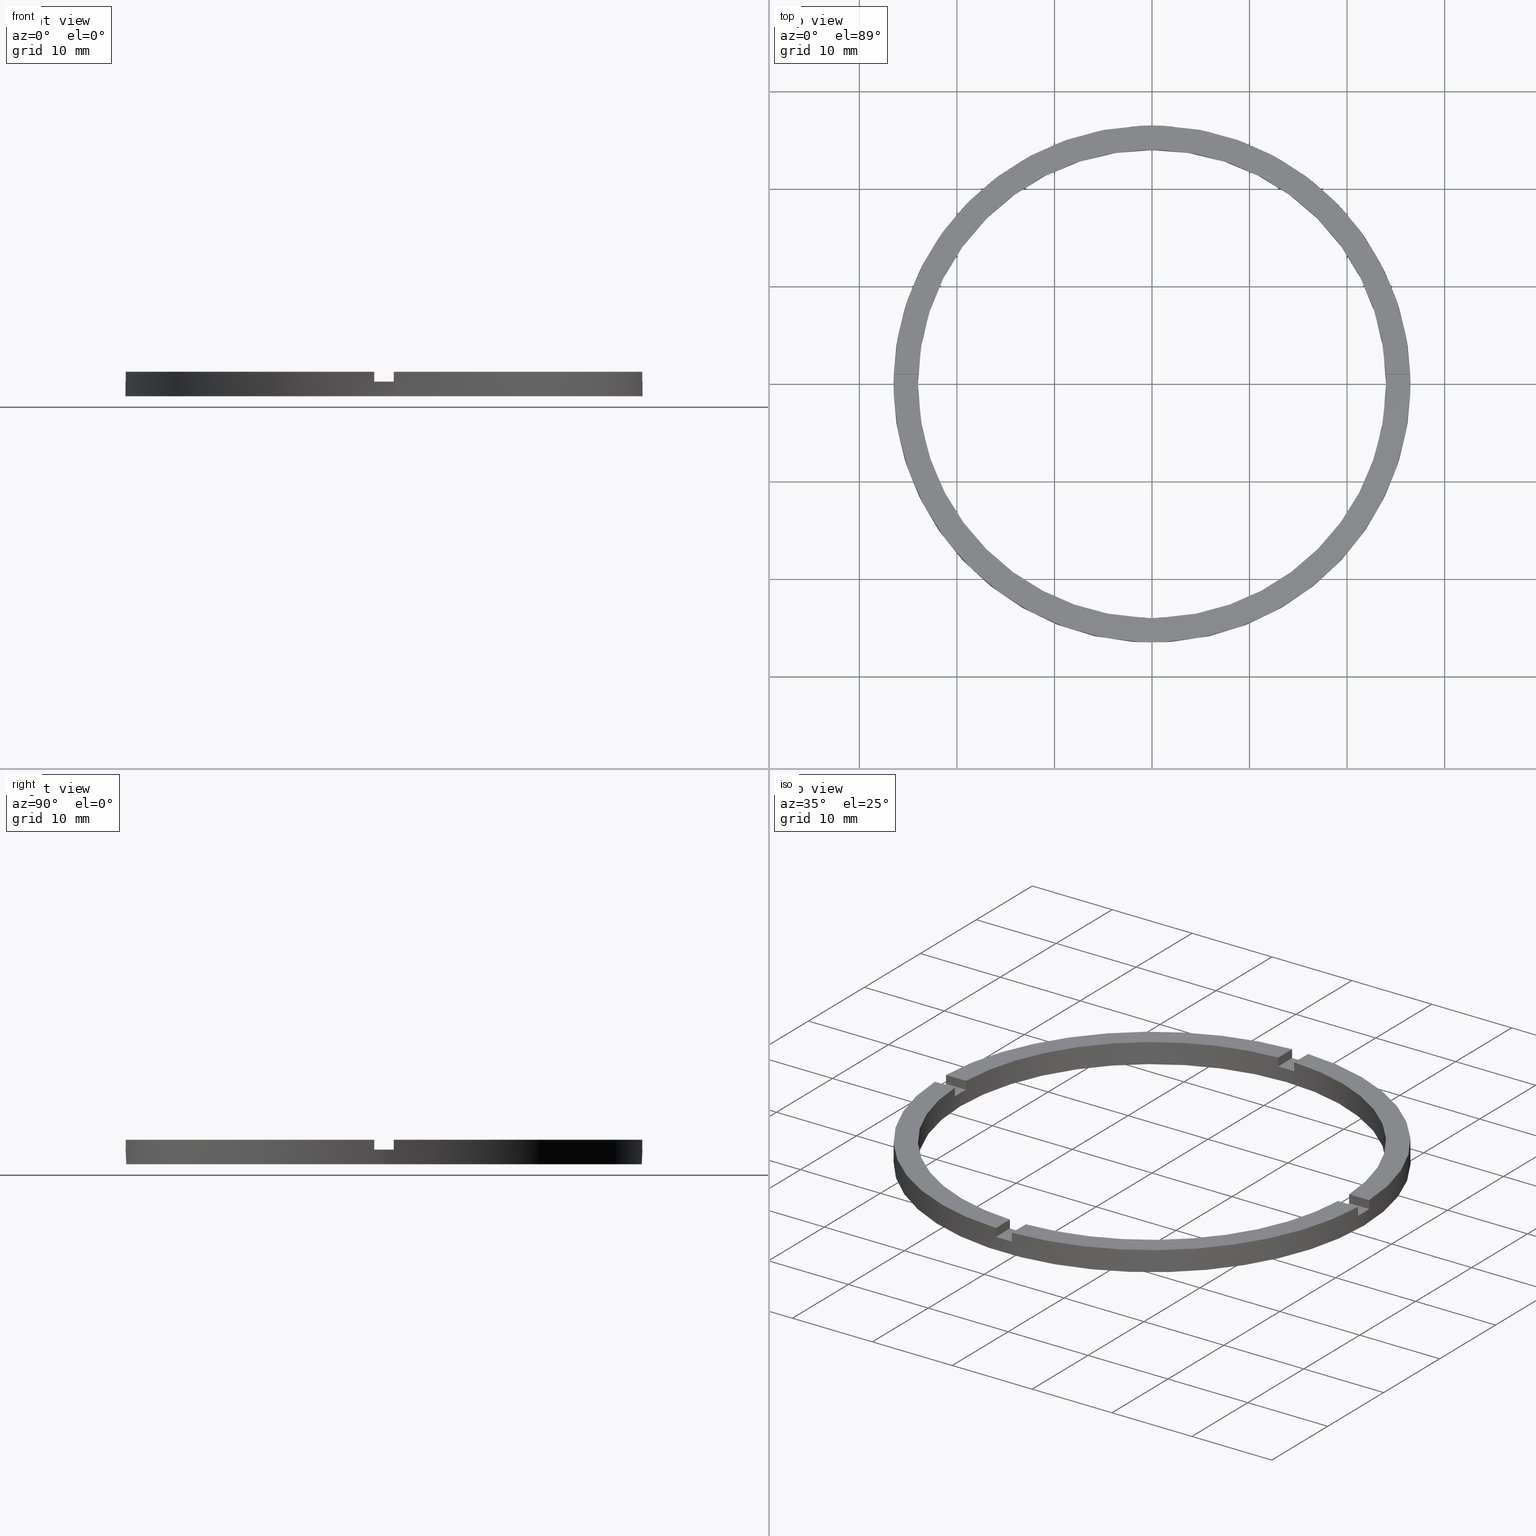
[diagram: canonical four-view strip — front | top / right | iso, engineering-drawing reading convention]
A machine part, canonical four-view strip (front | top / right | iso — engineering-drawing reading convention). The complete STEP part file that produces these views, byte-faithful:
ISO-10303-21;
HEADER;
FILE_DESCRIPTION (( 'STEP AP203' ),
    '1' );
FILE_NAME ('514111.step',
    '2024-12-26T02:38:33',
    ( 'MSI' ),
    ( '' ),
    'SwSTEP 2.0',
    'SolidWorks 2020',
    '' );
FILE_SCHEMA (( 'CONFIG_CONTROL_DESIGN' ));
ENDSEC;

DATA;
#1 = CC_DESIGN_PERSON_AND_ORGANIZATION_ASSIGNMENT ( #338, #728, ( #43 ) ) ;
#2 = EDGE_CURVE ( 'NONE', #87, #69, #513, .T. ) ;
#3 = AXIS2_PLACEMENT_3D ( 'NONE', #77, #549, #424 ) ;
#4 = CARTESIAN_POINT ( 'NONE',  ( 0.000000000000000000, 0.000000000000000000, 2.500000000000000000 ) ) ;
#5 = EDGE_CURVE ( 'NONE', #258, #254, #260, .T. ) ;
#6 = DIRECTION ( 'NONE',  ( -0.000000000000000000, -0.000000000000000000, -1.000000000000000000 ) ) ;
#7 = DIRECTION ( 'NONE',  ( -0.000000000000000000, -1.000000000000000000, -0.000000000000000000 ) ) ;
#8 = DIRECTION ( 'NONE',  ( -0.000000000000000000, -0.000000000000000000, -1.000000000000000000 ) ) ;
#9 = DIRECTION ( 'NONE',  ( 1.000000000000000000, 4.336808689942017120E-17, 0.000000000000000000 ) ) ;
#10 = EDGE_CURVE ( 'NONE', #644, #315, #759, .T. ) ;
#11 = CARTESIAN_POINT ( 'NONE',  ( -1.000000000000160316, -26.48112535373071807, 2.500000000000000000 ) ) ;
#12 = EDGE_CURVE ( 'NONE', #771, #374, #501, .T. ) ;
#13 = CARTESIAN_POINT ( 'NONE',  ( -24.00000000000000355, 0.000000000000000000, 1.500000000000000000 ) ) ;
#14 = CARTESIAN_POINT ( 'NONE',  ( -1.000000000000026201, 16.50000000000000000, 2.500000000000000000 ) ) ;
#15 = CARTESIAN_POINT ( 'NONE',  ( 0.000000000000000000, 0.000000000000000000, 2.500000000000000000 ) ) ;
#16 = LOCAL_TIME ( 10, 38, 33.00000000000000000, #538 ) ;
#17 = CALENDAR_DATE ( 2024, 26, 12 ) ;
#18 = CARTESIAN_POINT ( 'NONE',  ( 26.48112535373072873, 0.9999999999998427924, 1.500000000000000000 ) ) ;
#19 = CALENDAR_DATE ( 2024, 26, 12 ) ;
#20 = DIRECTION ( 'NONE',  ( -0.000000000000000000, -0.000000000000000000, -1.000000000000000000 ) ) ;
#21 = CARTESIAN_POINT ( 'NONE',  ( -23.97915761656360445, 0.9999999999999740208, 1.500000000000000000 ) ) ;
#22 = DIRECTION ( 'NONE',  ( 0.000000000000000000, -0.000000000000000000, 1.000000000000000000 ) ) ;
#23 = DATE_AND_TIME ( #19, #287 ) ;
#24 = AXIS2_PLACEMENT_3D ( 'NONE', #158, #213, #151 ) ;
#25 = CARTESIAN_POINT ( 'NONE',  ( 0.9999999999998397948, -26.48112535373072873, 2.500000000000000000 ) ) ;
#26 = CC_DESIGN_PERSON_AND_ORGANIZATION_ASSIGNMENT ( #50, #396, ( #149 ) ) ;
#27 = PERSON_AND_ORGANIZATION ( #531, #316 ) ;
#28 = CARTESIAN_POINT ( 'NONE',  ( 26.48112535373071807, -1.000000000000157208, 2.500000000000000000 ) ) ;
#29 = SHAPE_DEFINITION_REPRESENTATION ( #280, #138 ) ;
#30 = DIRECTION ( 'NONE',  ( 0.000000000000000000, -0.000000000000000000, 1.000000000000000000 ) ) ;
#31 = APPROVAL_DATE_TIME ( #294, #532 ) ;
#32 = AXIS2_PLACEMENT_3D ( 'NONE', #747, #741, #204 ) ;
#33 = EDGE_CURVE ( 'NONE', #766, #254, #251, .T. ) ;
#34 = DIRECTION ( 'NONE',  ( 1.000000000000000000, 0.000000000000000000, -0.000000000000000000 ) ) ;
#35 = EDGE_CURVE ( 'NONE', #588, #591, #499, .T. ) ;
#36 = ORIENTED_EDGE ( 'NONE', *, *, #174, .T. ) ;
#37 = ORIENTED_EDGE ( 'NONE', *, *, #427, .T. ) ;
#38 = PLANE ( 'NONE',  #690 ) ;
#39 = DIRECTION ( 'NONE',  ( -1.301042606982605074E-16, 1.000000000000000000, 0.000000000000000000 ) ) ;
#40 = CARTESIAN_POINT ( 'NONE',  ( 0.9999999999999737987, 16.50000000000000000, 2.500000000000000000 ) ) ;
#41 = CARTESIAN_POINT ( 'NONE',  ( -16.50000000000018474, 0.9999999999999753530, 1.500000000000000000 ) ) ;
#42 = AXIS2_PLACEMENT_3D ( 'NONE', #676, #742, #524 ) ;
#43 = PRODUCT ( '514111', '514111', '', ( #541 ) ) ;
#44 = CARTESIAN_POINT ( 'NONE',  ( 0.000000000000000000, 0.000000000000000000, 2.500000000000000000 ) ) ;
#45 = ORIENTED_EDGE ( 'NONE', *, *, #427, .F. ) ;
#46 = EDGE_LOOP ( 'NONE', ( #379, #345, #585, #122 ) ) ;
#47 = ORIENTED_EDGE ( 'NONE', *, *, #536, .T. ) ;
#48 = CARTESIAN_POINT ( 'NONE',  ( -26.48112535373072163, -1.000000000000026423, 2.500000000000000000 ) ) ;
#49 = ORIENTED_EDGE ( 'NONE', *, *, #751, .T. ) ;
#50 = PERSON_AND_ORGANIZATION ( #531, #316 ) ;
#51 = APPLICATION_PROTOCOL_DEFINITION ( 'international standard', 'config_control_design', 1994, #61 ) ;
#52 = CARTESIAN_POINT ( 'NONE',  ( 0.000000000000000000, 0.000000000000000000, 1.500000000000000000 ) ) ;
#53 = ORIENTED_EDGE ( 'NONE', *, *, #364, .T. ) ;
#54 = ORIENTED_EDGE ( 'NONE', *, *, #10, .F. ) ;
#56 = ORIENTED_EDGE ( 'NONE', *, *, #751, .F. ) ;
#55 = CARTESIAN_POINT ( 'NONE',  ( 26.48112535373071807, -1.000000000000157208, 2.500000000000000000 ) ) ;
#57 = EDGE_CURVE ( 'NONE', #250, #258, #764, .T. ) ;
#58 = APPROVAL_PERSON_ORGANIZATION ( #587, #781, #559 ) ;
#59 = EDGE_LOOP ( 'NONE', ( #252, #307, #101, #510, #114, #102 ) ) ;
#60 = LOCAL_TIME ( 10, 38, 33.00000000000000000, #584 ) ;
#61 = APPLICATION_CONTEXT ( 'configuration controlled 3d designs of mechanical parts and assemblies' ) ;
#62 = CARTESIAN_POINT ( 'NONE',  ( 0.000000000000000000, 0.000000000000000000, 0.000000000000000000 ) ) ;
#63 = ORIENTED_EDGE ( 'NONE', *, *, #72, .T. ) ;
#64 = CALENDAR_DATE ( 2024, 26, 12 ) ;
#65 = PRODUCT_RELATED_PRODUCT_CATEGORY ( 'detail', '', ( #43 ) ) ;
#66 = EDGE_LOOP ( 'NONE', ( #78, #619, #91, #312 ) ) ;
#67 = DATE_AND_TIME ( #64, #313 ) ;
#68 = EDGE_CURVE ( 'NONE', #83, #386, #193, .T. ) ;
#69 = VERTEX_POINT ( 'NONE', #544 ) ;
#70 = CARTESIAN_POINT ( 'NONE',  ( 0.000000000000000000, 0.000000000000000000, 1.500000000000000000 ) ) ;
#71 = LOCAL_TIME ( 10, 38, 33.00000000000000000, #589 ) ;
#72 = EDGE_CURVE ( 'NONE', #598, #116, #170, .T. ) ;
#73 = DIRECTION ( 'NONE',  ( 0.000000000000000000, 0.000000000000000000, 1.000000000000000000 ) ) ;
#74 = ORIENTED_EDGE ( 'NONE', *, *, #68, .T. ) ;
#75 = PLANE ( 'NONE',  #265 ) ;
#76 = CARTESIAN_POINT ( 'NONE',  ( 0.000000000000000000, 0.000000000000000000, 2.500000000000000000 ) ) ;
#77 = CARTESIAN_POINT ( 'NONE',  ( -16.50000000000018474, -1.000000000000024647, 1.500000000000000000 ) ) ;
#78 = ORIENTED_EDGE ( 'NONE', *, *, #420, .F. ) ;
#79 = ORIENTED_EDGE ( 'NONE', *, *, #627, .F. ) ;
#80 = VERTEX_POINT ( 'NONE', #11 ) ;
#81 = ORIENTED_EDGE ( 'NONE', *, *, #305, .T. ) ;
#82 = EDGE_CURVE ( 'NONE', #347, #337, #462, .T. ) ;
#83 = VERTEX_POINT ( 'NONE', #217 ) ;
#84 = ORIENTED_EDGE ( 'NONE', *, *, #82, .F. ) ;
#85 = DIRECTION ( 'NONE',  ( -0.000000000000000000, -0.000000000000000000, -1.000000000000000000 ) ) ;
#86 = EDGE_LOOP ( 'NONE', ( #606, #623, #572, #327 ) ) ;
#87 = VERTEX_POINT ( 'NONE', #25 ) ;
#88 =( NAMED_UNIT ( * ) PLANE_ANGLE_UNIT ( ) SI_UNIT ( $, .RADIAN. ) );
#89 = CARTESIAN_POINT ( 'NONE',  ( -1.000000000000160760, -23.97915761656359734, 1.500000000000000000 ) ) ;
#90 = CARTESIAN_POINT ( 'NONE',  ( 26.48112535373072873, 0.9999999999998427924, 2.500000000000000000 ) ) ;
#91 = ORIENTED_EDGE ( 'NONE', *, *, #404, .F. ) ;
#92 = ORIENTED_EDGE ( 'NONE', *, *, #463, .T. ) ;
#93 = ORIENTED_EDGE ( 'NONE', *, *, #718, .F. ) ;
#94 = EDGE_LOOP ( 'NONE', ( #92, #256, #636, #355, #348, #615, #63, #104, #571, #318, #604, #378 ) ) ;
#95 = DIRECTION ( 'NONE',  ( 0.000000000000000000, 0.000000000000000000, 1.000000000000000000 ) ) ;
#96 = EDGE_LOOP ( 'NONE', ( #637, #357, #120, #769 ) ) ;
#97 = ORIENTED_EDGE ( 'NONE', *, *, #535, .F. ) ;
#98 = ORIENTED_EDGE ( 'NONE', *, *, #268, .T. ) ;
#99 = ORIENTED_EDGE ( 'NONE', *, *, #306, .T. ) ;
#100 = PLANE ( 'NONE',  #278 ) ;
#101 = ORIENTED_EDGE ( 'NONE', *, *, #567, .T. ) ;
#102 = ORIENTED_EDGE ( 'NONE', *, *, #243, .T. ) ;
#103 = VERTEX_POINT ( 'NONE', #18 ) ;
#104 = ORIENTED_EDGE ( 'NONE', *, *, #382, .F. ) ;
#105 = AXIS2_PLACEMENT_3D ( 'NONE', #15, #304, #282 ) ;
#106 = ORIENTED_EDGE ( 'NONE', *, *, #372, .T. ) ;
#107 = ORIENTED_EDGE ( 'NONE', *, *, #5, .F. ) ;
#108 = ORIENTED_EDGE ( 'NONE', *, *, #35, .T. ) ;
#109 = ORIENTED_EDGE ( 'NONE', *, *, #537, .F. ) ;
#110 = CARTESIAN_POINT ( 'NONE',  ( -24.00000000000000355, 0.000000000000000000, 2.500000000000000000 ) ) ;
#111 = ORIENTED_EDGE ( 'NONE', *, *, #150, .T. ) ;
#112 = ORIENTED_EDGE ( 'NONE', *, *, #757, .F. ) ;
#113 = CARTESIAN_POINT ( 'NONE',  ( -26.50000000000000355, 0.000000000000000000, 1.500000000000000000 ) ) ;
#114 = ORIENTED_EDGE ( 'NONE', *, *, #152, .F. ) ;
#115 = ORIENTED_EDGE ( 'NONE', *, *, #718, .T. ) ;
#116 = VERTEX_POINT ( 'NONE', #522 ) ;
#117 = EDGE_LOOP ( 'NONE', ( #368, #350, #109, #341 ) ) ;
#118 = CARTESIAN_POINT ( 'NONE',  ( -16.50000000000018474, -1.000000000000024647, 1.500000000000000000 ) ) ;
#119 = ORIENTED_EDGE ( 'NONE', *, *, #173, .F. ) ;
#120 = ORIENTED_EDGE ( 'NONE', *, *, #292, .F. ) ;
#121 = ADVANCED_FACE ( 'NONE', ( #176 ), #725, .T. ) ;
#122 = ORIENTED_EDGE ( 'NONE', *, *, #476, .F. ) ;
#123 = ORIENTED_EDGE ( 'NONE', *, *, #57, .T. ) ;
#124 = DIRECTION ( 'NONE',  ( 0.000000000000000000, -0.000000000000000000, 1.000000000000000000 ) ) ;
#125 = ORIENTED_EDGE ( 'NONE', *, *, #567, .F. ) ;
#126 = ORIENTED_EDGE ( 'NONE', *, *, #686, .T. ) ;
#127 = CARTESIAN_POINT ( 'NONE',  ( -1.000000000000026201, 16.50000000000000000, 1.500000000000000000 ) ) ;
#128 = VERTEX_POINT ( 'NONE', #638 ) ;
#129 = VERTEX_POINT ( 'NONE', #506 ) ;
#130 = EDGE_CURVE ( 'NONE', #87, #375, #455, .T. ) ;
#131 = ORIENTED_EDGE ( 'NONE', *, *, #82, .T. ) ;
#132 = ORIENTED_EDGE ( 'NONE', *, *, #521, .F. ) ;
#133 = DIRECTION ( 'NONE',  ( -1.000000000000000000, -1.734723475976806848E-16, 0.000000000000000000 ) ) ;
#134 = DIRECTION ( 'NONE',  ( 1.000000000000000000, 0.000000000000000000, 0.000000000000000000 ) ) ;
#135 = CARTESIAN_POINT ( 'NONE',  ( 0.9999999999998393507, -23.97915761656361155, 2.500000000000000000 ) ) ;
#136 = APPLICATION_CONTEXT ( 'configuration controlled 3d designs of mechanical parts and assemblies' ) ;
#137 = CARTESIAN_POINT ( 'NONE',  ( -1.000000000000161648, -16.50000000000018119, 2.500000000000000000 ) ) ;
#138 = ADVANCED_BREP_SHAPE_REPRESENTATION ( '514111', ( #595, #700 ), #209 ) ;
#139 = DIRECTION ( 'NONE',  ( 1.000000000000000000, 0.000000000000000000, 0.000000000000000000 ) ) ;
#140 = AXIS2_PLACEMENT_3D ( 'NONE', #210, #443, #519 ) ;
#141 = AXIS2_PLACEMENT_3D ( 'NONE', #569, #699, #344 ) ;
#142 = CARTESIAN_POINT ( 'NONE',  ( 0.000000000000000000, 0.000000000000000000, 0.000000000000000000 ) ) ;
#143 = APPLICATION_PROTOCOL_DEFINITION ( 'international standard', 'config_control_design', 1994, #136 ) ;
#144 = DIRECTION ( 'NONE',  ( 0.000000000000000000, 0.000000000000000000, 1.000000000000000000 ) ) ;
#145 = DIRECTION ( 'NONE',  ( 0.000000000000000000, -0.000000000000000000, 1.000000000000000000 ) ) ;
#146 = DIRECTION ( 'NONE',  ( 0.000000000000000000, 0.000000000000000000, 1.000000000000000000 ) ) ;
#147 = CARTESIAN_POINT ( 'NONE',  ( 16.49999999999999289, 0.9999999999998423483, 1.500000000000000000 ) ) ;
#148 = CARTESIAN_POINT ( 'NONE',  ( 0.000000000000000000, 0.000000000000000000, 1.500000000000000000 ) ) ;
#149 = PRODUCT_DEFINITION ( 'δ֪', '', #286, #557 ) ;
#150 = EDGE_CURVE ( 'NONE', #342, #103, #441, .T. ) ;
#151 = DIRECTION ( 'NONE',  ( 1.000000000000000000, 0.000000000000000000, 0.000000000000000000 ) ) ;
#152 = EDGE_CURVE ( 'NONE', #250, #358, #200, .T. ) ;
#153 = CARTESIAN_POINT ( 'NONE',  ( -26.50000000000000355, 0.000000000000000000, 2.500000000000000000 ) ) ;
#154 = CARTESIAN_POINT ( 'NONE',  ( -16.50000000000018474, 0.9999999999999753530, 2.500000000000000000 ) ) ;
#155 = DIRECTION ( 'NONE',  ( -0.000000000000000000, -0.000000000000000000, -1.000000000000000000 ) ) ;
#156 = EDGE_CURVE ( 'NONE', #370, #591, #457, .T. ) ;
#157 = CARTESIAN_POINT ( 'NONE',  ( 23.97915761656359734, -1.000000000000157208, 1.500000000000000000 ) ) ;
#158 = CARTESIAN_POINT ( 'NONE',  ( 0.000000000000000000, 0.000000000000000000, 2.500000000000000000 ) ) ;
#159 = CARTESIAN_POINT ( 'NONE',  ( 0.9999999999999737987, 16.50000000000000000, 1.500000000000000000 ) ) ;
#160 = CARTESIAN_POINT ( 'NONE',  ( 16.49999999999999289, 0.9999999999998423483, 1.500000000000000000 ) ) ;
#161 = ADVANCED_FACE ( 'NONE', ( #698 ), #317, .F. ) ;
#162 = CARTESIAN_POINT ( 'NONE',  ( -1.000000000000161648, -16.50000000000018119, 1.500000000000000000 ) ) ;
#163 = CARTESIAN_POINT ( 'NONE',  ( -26.48112535373072163, -1.000000000000026423, 2.500000000000000000 ) ) ;
#164 = CARTESIAN_POINT ( 'NONE',  ( 0.9999999999999737987, 26.48112535373072518, 2.500000000000000000 ) ) ;
#165 = ADVANCED_FACE ( 'NONE', ( #203, #430 ), #628, .F. ) ;
#166 = CARTESIAN_POINT ( 'NONE',  ( 26.48112535373072873, 0.9999999999998427924, 2.500000000000000000 ) ) ;
#167 = ADVANCED_FACE ( 'NONE', ( #717 ), #775, .F. ) ;
#168 = PLANE ( 'NONE',  #581 ) ;
#169 = EDGE_CURVE ( 'NONE', #605, #342, #458, .T. ) ;
#170 = CIRCLE ( 'NONE', #679, 24.00000000000000355 ) ;
#171 = APPROVAL ( #320, 'δָ��' ) ;
#172 = VECTOR ( 'NONE', #95, 1000.000000000000000 ) ;
#173 = EDGE_CURVE ( 'NONE', #771, #373, #704, .T. ) ;
#174 = EDGE_CURVE ( 'NONE', #337, #347, #187, .T. ) ;
#175 = VECTOR ( 'NONE', #73, 1000.000000000000000 ) ;
#176 = FACE_OUTER_BOUND ( 'NONE', #593, .T. ) ;
#177 = CARTESIAN_POINT ( 'NONE',  ( 16.49999999999999645, -1.000000000000157652, 1.500000000000000000 ) ) ;
#178 = VECTOR ( 'NONE', #146, 1000.000000000000000 ) ;
#179 = DIRECTION ( 'NONE',  ( -0.000000000000000000, -0.000000000000000000, -1.000000000000000000 ) ) ;
#180 = FACE_OUTER_BOUND ( 'NONE', #592, .T. ) ;
#181 = VECTOR ( 'NONE', #452, 1000.000000000000000 ) ;
#182 = LINE ( 'NONE', #137, #185 ) ;
#183 = DIRECTION ( 'NONE',  ( -4.336808689942017120E-17, 1.000000000000000000, 0.000000000000000000 ) ) ;
#184 = CARTESIAN_POINT ( 'NONE',  ( 0.000000000000000000, 0.000000000000000000, 1.500000000000000000 ) ) ;
#185 = VECTOR ( 'NONE', #748, 1000.000000000000000 ) ;
#186 = LINE ( 'NONE', #28, #449 ) ;
#187 = CIRCLE ( 'NONE', #141, 26.50000000000000355 ) ;
#188 = LINE ( 'NONE', #561, #453 ) ;
#189 = DIRECTION ( 'NONE',  ( -1.000000000000000000, 0.000000000000000000, 0.000000000000000000 ) ) ;
#190 = LINE ( 'NONE', #205, #192 ) ;
#191 = AXIS2_PLACEMENT_3D ( 'NONE', #322, #403, #450 ) ;
#192 = VECTOR ( 'NONE', #262, 1000.000000000000000 ) ;
#193 = LINE ( 'NONE', #135, #437 ) ;
#194 = DIRECTION ( 'NONE',  ( -1.000000000000000000, 0.000000000000000000, 0.000000000000000000 ) ) ;
#195 = FACE_OUTER_BOUND ( 'NONE', #96, .T. ) ;
#196 = CARTESIAN_POINT ( 'NONE',  ( 23.97915761656359734, -1.000000000000157208, 2.500000000000000000 ) ) ;
#197 = CARTESIAN_POINT ( 'NONE',  ( 0.000000000000000000, 0.000000000000000000, 2.500000000000000000 ) ) ;
#198 = DIRECTION ( 'NONE',  ( 1.000000000000000000, 0.000000000000000000, -0.000000000000000000 ) ) ;
#199 = CIRCLE ( 'NONE', #668, 24.00000000000000355 ) ;
#200 = CIRCLE ( 'NONE', #444, 24.00000000000000355 ) ;
#201 = LINE ( 'NONE', #264, #178 ) ;
#202 = CARTESIAN_POINT ( 'NONE',  ( 0.000000000000000000, 0.000000000000000000, 1.500000000000000000 ) ) ;
#203 = FACE_OUTER_BOUND ( 'NONE', #383, .T. ) ;
#204 = DIRECTION ( 'NONE',  ( 1.000000000000000000, 0.000000000000000000, -0.000000000000000000 ) ) ;
#205 = CARTESIAN_POINT ( 'NONE',  ( 23.97915761656361155, 0.9999999999998427924, 2.500000000000000000 ) ) ;
#206 = DIRECTION ( 'NONE',  ( -0.000000000000000000, -0.000000000000000000, -1.000000000000000000 ) ) ;
#207 = LINE ( 'NONE', #41, #715 ) ;
#208 = FACE_OUTER_BOUND ( 'NONE', #86, .T. ) ;
#209 =( GEOMETRIC_REPRESENTATION_CONTEXT ( 3 ) GLOBAL_UNCERTAINTY_ASSIGNED_CONTEXT ( ( #232 ) ) GLOBAL_UNIT_ASSIGNED_CONTEXT ( ( #482, #88, #270 ) ) REPRESENTATION_CONTEXT ( 'NONE', 'WORKASPACE' ) );
#210 = CARTESIAN_POINT ( 'NONE',  ( 0.000000000000000000, 0.000000000000000000, 1.500000000000000000 ) ) ;
#211 = VECTOR ( 'NONE', #259, 1000.000000000000000 ) ;
#212 = DIRECTION ( 'NONE',  ( 0.000000000000000000, 0.000000000000000000, 1.000000000000000000 ) ) ;
#213 = DIRECTION ( 'NONE',  ( 0.000000000000000000, 0.000000000000000000, 1.000000000000000000 ) ) ;
#214 = CIRCLE ( 'NONE', #733, 26.50000000000000355 ) ;
#215 = DATE_TIME_ROLE ( 'classification_date' ) ;
#216 = DIRECTION ( 'NONE',  ( 1.000000000000000000, 0.000000000000000000, 0.000000000000000000 ) ) ;
#217 = CARTESIAN_POINT ( 'NONE',  ( 0.9999999999998393507, -23.97915761656361155, 2.500000000000000000 ) ) ;
#218 = FACE_OUTER_BOUND ( 'NONE', #340, .T. ) ;
#219 = CIRCLE ( 'NONE', #596, 24.00000000000000355 ) ;
#220 = VECTOR ( 'NONE', #303, 1000.000000000000000 ) ;
#221 = ADVANCED_FACE ( 'NONE', ( #195 ), #168, .T. ) ;
#222 = PLANE ( 'NONE',  #545 ) ;
#223 = LINE ( 'NONE', #177, #737 ) ;
#224 = DIRECTION ( 'NONE',  ( 1.000000000000000000, 0.000000000000000000, 0.000000000000000000 ) ) ;
#225 = AXIS2_PLACEMENT_3D ( 'NONE', #4, #509, #302 ) ;
#226 = CARTESIAN_POINT ( 'NONE',  ( 0.000000000000000000, 0.000000000000000000, 1.500000000000000000 ) ) ;
#227 = LINE ( 'NONE', #431, #211 ) ;
#228 = EDGE_CURVE ( 'NONE', #69, #386, #719, .T. ) ;
#229 = ORIENTED_EDGE ( 'NONE', *, *, #535, .T. ) ;
#230 = FACE_OUTER_BOUND ( 'NONE', #570, .T. ) ;
#231 = CIRCLE ( 'NONE', #191, 26.50000000000000355 ) ;
#232 = UNCERTAINTY_MEASURE_WITH_UNIT (LENGTH_MEASURE( 1.000000000000000082E-05 ), #482, 'distance_accuracy_value', 'NONE');
#233 = ADVANCED_FACE ( 'NONE', ( #180 ), #365, .F. ) ;
#234 = VECTOR ( 'NONE', #6, 1000.000000000000000 ) ;
#235 = EDGE_CURVE ( 'NONE', #369, #373, #695, .T. ) ;
#236 = VECTOR ( 'NONE', #520, 1000.000000000000000 ) ;
#237 = FACE_OUTER_BOUND ( 'NONE', #46, .T. ) ;
#238 = DIRECTION ( 'NONE',  ( 4.336808689942017120E-17, -1.000000000000000000, 0.000000000000000000 ) ) ;
#239 = LINE ( 'NONE', #568, #245 ) ;
#240 = CARTESIAN_POINT ( 'NONE',  ( 0.000000000000000000, 0.000000000000000000, 0.000000000000000000 ) ) ;
#241 = CIRCLE ( 'NONE', #662, 24.00000000000000355 ) ;
#242 = CARTESIAN_POINT ( 'NONE',  ( 0.000000000000000000, 0.000000000000000000, 1.500000000000000000 ) ) ;
#243 = EDGE_CURVE ( 'NONE', #250, #644, #207, .T. ) ;
#244 = FACE_OUTER_BOUND ( 'NONE', #514, .T. ) ;
#245 = VECTOR ( 'NONE', #410, 1000.000000000000000 ) ;
#246 = LINE ( 'NONE', #640, #220 ) ;
#247 = VECTOR ( 'NONE', #206, 1000.000000000000000 ) ;
#248 = AXIS2_PLACEMENT_3D ( 'NONE', #159, #310, #528 ) ;
#249 = DIRECTION ( 'NONE',  ( -1.301042606982605074E-16, 1.000000000000000000, -0.000000000000000000 ) ) ;
#250 = VERTEX_POINT ( 'NONE', #21 ) ;
#251 = CIRCLE ( 'NONE', #293, 26.50000000000000355 ) ;
#252 = ORIENTED_EDGE ( 'NONE', *, *, #10, .T. ) ;
#253 = VERTEX_POINT ( 'NONE', #89 ) ;
#254 = VERTEX_POINT ( 'NONE', #642 ) ;
#255 = ORIENTED_EDGE ( 'NONE', *, *, #515, .F. ) ;
#256 = ORIENTED_EDGE ( 'NONE', *, *, #156, .T. ) ;
#257 = ORIENTED_EDGE ( 'NONE', *, *, #404, .T. ) ;
#258 = VERTEX_POINT ( 'NONE', #397 ) ;
#259 = DIRECTION ( 'NONE',  ( -0.000000000000000000, -0.000000000000000000, -1.000000000000000000 ) ) ;
#260 = LINE ( 'NONE', #154, #762 ) ;
#261 = PLANE ( 'NONE',  #417 ) ;
#262 = DIRECTION ( 'NONE',  ( -0.000000000000000000, -0.000000000000000000, -1.000000000000000000 ) ) ;
#263 = DIRECTION ( 'NONE',  ( 0.000000000000000000, 0.000000000000000000, 1.000000000000000000 ) ) ;
#264 = CARTESIAN_POINT ( 'NONE',  ( -1.000000000000160316, -26.48112535373071807, 2.500000000000000000 ) ) ;
#265 = AXIS2_PLACEMENT_3D ( 'NONE', #147, #183, #485 ) ;
#266 = DIRECTION ( 'NONE',  ( 0.000000000000000000, 0.000000000000000000, 1.000000000000000000 ) ) ;
#267 = CARTESIAN_POINT ( 'NONE',  ( -1.000000000000026201, 23.97915761656360445, 2.500000000000000000 ) ) ;
#268 = EDGE_CURVE ( 'NONE', #369, #128, #190, .T. ) ;
#269 = CARTESIAN_POINT ( 'NONE',  ( 24.00000000000000355, 2.939152317953648289E-15, 2.500000000000000000 ) ) ;
#270 =( NAMED_UNIT ( * ) SI_UNIT ( $, .STERADIAN. ) SOLID_ANGLE_UNIT ( ) );
#271 = DIRECTION ( 'NONE',  ( -0.000000000000000000, 0.000000000000000000, 1.000000000000000000 ) ) ;
#272 = DIRECTION ( 'NONE',  ( 0.000000000000000000, 0.000000000000000000, 1.000000000000000000 ) ) ;
#273 = DIRECTION ( 'NONE',  ( 1.000000000000000000, 0.000000000000000000, 0.000000000000000000 ) ) ;
#274 = DATE_TIME_ROLE ( 'creation_date' ) ;
#275 = ORIENTED_EDGE ( 'NONE', *, *, #498, .T. ) ;
#276 = AXIS2_PLACEMENT_3D ( 'NONE', #240, #290, #666 ) ;
#277 = CARTESIAN_POINT ( 'NONE',  ( -1.000000000000026201, 26.48112535373072163, 1.500000000000000000 ) ) ;
#278 = AXIS2_PLACEMENT_3D ( 'NONE', #425, #331, #34 ) ;
#279 = CALENDAR_DATE ( 2024, 26, 12 ) ;
#280 = PRODUCT_DEFINITION_SHAPE ( 'NONE', 'NONE',  #149 ) ;
#281 = AXIS2_PLACEMENT_3D ( 'NONE', #414, #474, #710 ) ;
#282 = DIRECTION ( 'NONE',  ( 1.000000000000000000, 0.000000000000000000, -0.000000000000000000 ) ) ;
#283 = DIRECTION ( 'NONE',  ( 0.000000000000000000, 0.000000000000000000, 1.000000000000000000 ) ) ;
#284 = PERSON_AND_ORGANIZATION ( #531, #316 ) ;
#285 = APPROVAL_PERSON_ORGANIZATION ( #550, #171, #684 ) ;
#286 = PRODUCT_DEFINITION_FORMATION_WITH_SPECIFIED_SOURCE ( '�κ�', '', #43, .NOT_KNOWN. ) ;
#287 = LOCAL_TIME ( 10, 38, 33.00000000000000000, #546 ) ;
#288 = DATE_AND_TIME ( #279, #16 ) ;
#289 = CARTESIAN_POINT ( 'NONE',  ( 16.49999999999999645, -1.000000000000157652, 1.500000000000000000 ) ) ;
#290 = DIRECTION ( 'NONE',  ( 0.000000000000000000, 0.000000000000000000, 1.000000000000000000 ) ) ;
#291 = EDGE_CURVE ( 'NONE', #116, #80, #182, .T. ) ;
#292 = EDGE_CURVE ( 'NONE', #253, #386, #199, .T. ) ;
#293 = AXIS2_PLACEMENT_3D ( 'NONE', #422, #399, #649 ) ;
#294 = DATE_AND_TIME ( #17, #60 ) ;
#295 = ADVANCED_FACE ( 'NONE', ( #724 ), #432, .T. ) ;
#296 = DIRECTION ( 'NONE',  ( 1.000000000000000000, 4.336808689942017120E-17, 0.000000000000000000 ) ) ;
#297 = DIRECTION ( 'NONE',  ( 0.000000000000000000, 0.000000000000000000, 1.000000000000000000 ) ) ;
#298 = AXIS2_PLACEMENT_3D ( 'NONE', #390, #552, #436 ) ;
#299 = DIRECTION ( 'NONE',  ( 1.000000000000000000, 0.000000000000000000, 0.000000000000000000 ) ) ;
#300 = CARTESIAN_POINT ( 'NONE',  ( 0.000000000000000000, 0.000000000000000000, 1.500000000000000000 ) ) ;
#301 = CARTESIAN_POINT ( 'NONE',  ( -1.000000000000026201, 23.97915761656360445, 1.500000000000000000 ) ) ;
#302 = DIRECTION ( 'NONE',  ( 1.000000000000000000, 0.000000000000000000, 0.000000000000000000 ) ) ;
#303 = DIRECTION ( 'NONE',  ( -0.000000000000000000, -1.000000000000000000, -0.000000000000000000 ) ) ;
#304 = DIRECTION ( 'NONE',  ( 0.000000000000000000, 0.000000000000000000, 1.000000000000000000 ) ) ;
#305 = EDGE_CURVE ( 'NONE', #103, #128, #460, .T. ) ;
#306 = EDGE_CURVE ( 'NONE', #370, #128, #720, .T. ) ;
#307 = ORIENTED_EDGE ( 'NONE', *, *, #323, .T. ) ;
#308 = ORIENTED_EDGE ( 'NONE', *, *, #612, .F. ) ;
#309 = ORIENTED_EDGE ( 'NONE', *, *, #542, .F. ) ;
#310 = DIRECTION ( 'NONE',  ( 1.000000000000000000, -0.000000000000000000, 0.000000000000000000 ) ) ;
#311 = DIRECTION ( 'NONE',  ( 0.000000000000000000, 0.000000000000000000, 1.000000000000000000 ) ) ;
#312 = ORIENTED_EDGE ( 'NONE', *, *, #130, .T. ) ;
#313 = LOCAL_TIME ( 10, 38, 33.00000000000000000, #329 ) ;
#314 = CARTESIAN_POINT ( 'NONE',  ( 0.000000000000000000, 0.000000000000000000, 2.500000000000000000 ) ) ;
#315 = VERTEX_POINT ( 'NONE', #113 ) ;
#316 = ORGANIZATION ( 'δָ��', 'δָ��', '' ) ;
#317 = PLANE ( 'NONE',  #298 ) ;
#318 = ORIENTED_EDGE ( 'NONE', *, *, #68, .F. ) ;
#319 = PERSON_AND_ORGANIZATION ( #531, #316 ) ;
#320 = APPROVAL_STATUS ( 'not_yet_approved' ) ;
#321 = VERTEX_POINT ( 'NONE', #163 ) ;
#322 = CARTESIAN_POINT ( 'NONE',  ( 0.000000000000000000, 0.000000000000000000, 1.500000000000000000 ) ) ;
#323 = EDGE_CURVE ( 'NONE', #315, #629, #442, .T. ) ;
#324 = ORIENTED_EDGE ( 'NONE', *, *, #677, .F. ) ;
#325 = DIRECTION ( 'NONE',  ( 1.000000000000000000, 0.000000000000000000, -0.000000000000000000 ) ) ;
#326 = APPROVAL_PERSON_ORGANIZATION ( #319, #532, #516 ) ;
#327 = ORIENTED_EDGE ( 'NONE', *, *, #612, .T. ) ;
#328 = VERTEX_POINT ( 'NONE', #335 ) ;
#329 = COORDINATED_UNIVERSAL_TIME_OFFSET ( 8, 0, .AHEAD. ) ;
#330 = ORIENTED_EDGE ( 'NONE', *, *, #243, .F. ) ;
#331 = DIRECTION ( 'NONE',  ( 0.000000000000000000, 0.000000000000000000, 1.000000000000000000 ) ) ;
#332 = APPROVAL_DATE_TIME ( #67, #781 ) ;
#333 = AXIS2_PLACEMENT_3D ( 'NONE', #314, #155, #400 ) ;
#334 = EDGE_LOOP ( 'NONE', ( #108, #360 ) ) ;
#335 = CARTESIAN_POINT ( 'NONE',  ( -1.000000000000160316, -26.48112535373071807, 1.500000000000000000 ) ) ;
#336 = ORIENTED_EDGE ( 'NONE', *, *, #515, .T. ) ;
#337 = VERTEX_POINT ( 'NONE', #408 ) ;
#338 = PERSON_AND_ORGANIZATION ( #531, #316 ) ;
#339 = ORIENTED_EDGE ( 'NONE', *, *, #2, .T. ) ;
#340 = EDGE_LOOP ( 'NONE', ( #330, #123, #349, #45 ) ) ;
#341 = ORIENTED_EDGE ( 'NONE', *, *, #542, .T. ) ;
#342 = VERTEX_POINT ( 'NONE', #548 ) ;
#343 = DIRECTION ( 'NONE',  ( 1.000000000000000000, 0.000000000000000000, 0.000000000000000000 ) ) ;
#344 = DIRECTION ( 'NONE',  ( 1.000000000000000000, 0.000000000000000000, 0.000000000000000000 ) ) ;
#345 = ORIENTED_EDGE ( 'NONE', *, *, #173, .T. ) ;
#346 = VERTEX_POINT ( 'NONE', #631 ) ;
#347 = VERTEX_POINT ( 'NONE', #740 ) ;
#348 = ORIENTED_EDGE ( 'NONE', *, *, #678, .T. ) ;
#349 = ORIENTED_EDGE ( 'NONE', *, *, #5, .T. ) ;
#350 = ORIENTED_EDGE ( 'NONE', *, *, #72, .F. ) ;
#351 = ORIENTED_EDGE ( 'NONE', *, *, #306, .F. ) ;
#352 = ORIENTED_EDGE ( 'NONE', *, *, #323, .F. ) ;
#353 = AXIS2_PLACEMENT_3D ( 'NONE', #672, #20, #735 ) ;
#354 = ORIENTED_EDGE ( 'NONE', *, *, #709, .T. ) ;
#355 = ORIENTED_EDGE ( 'NONE', *, *, #536, .F. ) ;
#356 = ORIENTED_EDGE ( 'NONE', *, *, #709, .F. ) ;
#357 = ORIENTED_EDGE ( 'NONE', *, *, #228, .T. ) ;
#358 = VERTEX_POINT ( 'NONE', #13 ) ;
#359 = ORIENTED_EDGE ( 'NONE', *, *, #537, .T. ) ;
#360 = ORIENTED_EDGE ( 'NONE', *, *, #406, .T. ) ;
#361 = ORIENTED_EDGE ( 'NONE', *, *, #677, .T. ) ;
#362 = ORIENTED_EDGE ( 'NONE', *, *, #235, .T. ) ;
#363 = ORIENTED_EDGE ( 'NONE', *, *, #12, .F. ) ;
#364 = EDGE_CURVE ( 'NONE', #502, #346, #721, .T. ) ;
#365 = PLANE ( 'NONE',  #652 ) ;
#366 = ORIENTED_EDGE ( 'NONE', *, *, #463, .F. ) ;
#367 = ORIENTED_EDGE ( 'NONE', *, *, #169, .F. ) ;
#368 = ORIENTED_EDGE ( 'NONE', *, *, #291, .F. ) ;
#369 = VERTEX_POINT ( 'NONE', #429 ) ;
#370 = VERTEX_POINT ( 'NONE', #508 ) ;
#371 = ORIENTED_EDGE ( 'NONE', *, *, #33, .F. ) ;
#372 = EDGE_CURVE ( 'NONE', #328, #80, #201, .T. ) ;
#373 = VERTEX_POINT ( 'NONE', #391 ) ;
#374 = VERTEX_POINT ( 'NONE', #301 ) ;
#375 = VERTEX_POINT ( 'NONE', #55 ) ;
#376 = ORIENTED_EDGE ( 'NONE', *, *, #464, .T. ) ;
#377 = ORIENTED_EDGE ( 'NONE', *, *, #33, .T. ) ;
#378 = ORIENTED_EDGE ( 'NONE', *, *, #364, .F. ) ;
#379 = ORIENTED_EDGE ( 'NONE', *, *, #498, .F. ) ;
#380 = ORIENTED_EDGE ( 'NONE', *, *, #57, .F. ) ;
#381 = DIRECTION ( 'NONE',  ( 1.000000000000000000, 0.000000000000000000, 0.000000000000000000 ) ) ;
#382 = EDGE_CURVE ( 'NONE', #253, #116, #451, .T. ) ;
#383 = EDGE_LOOP ( 'NONE', ( #84, #602 ) ) ;
#384 = DIRECTION ( 'NONE',  ( 0.000000000000000000, 0.000000000000000000, 1.000000000000000000 ) ) ;
#385 = DIRECTION ( 'NONE',  ( -1.000000000000000000, -1.734723475976806848E-16, 0.000000000000000000 ) ) ;
#386 = VERTEX_POINT ( 'NONE', #423 ) ;
#387 = AXIS2_PLACEMENT_3D ( 'NONE', #226, #283, #659 ) ;
#388 = APPROVAL_STATUS ( 'not_yet_approved' ) ;
#389 = DIRECTION ( 'NONE',  ( 0.000000000000000000, -0.000000000000000000, 1.000000000000000000 ) ) ;
#390 = CARTESIAN_POINT ( 'NONE',  ( -1.000000000000161648, -16.50000000000018119, 1.500000000000000000 ) ) ;
#391 = CARTESIAN_POINT ( 'NONE',  ( 0.9999999999999737987, 23.97915761656360445, 2.500000000000000000 ) ) ;
#392 = CARTESIAN_POINT ( 'NONE',  ( 0.000000000000000000, 0.000000000000000000, 1.500000000000000000 ) ) ;
#393 = CARTESIAN_POINT ( 'NONE',  ( -16.50000000000018474, -1.000000000000024647, 2.500000000000000000 ) ) ;
#394 = DIRECTION ( 'NONE',  ( 1.000000000000000000, 0.000000000000000000, 0.000000000000000000 ) ) ;
#395 = CC_DESIGN_DATE_AND_TIME_ASSIGNMENT ( #23, #215, ( #489 ) ) ;
#396 = PERSON_AND_ORGANIZATION_ROLE ( 'creator' ) ;
#397 = CARTESIAN_POINT ( 'NONE',  ( -23.97915761656360445, 0.9999999999999740208, 2.500000000000000000 ) ) ;
#398 = DIRECTION ( 'NONE',  ( 0.000000000000000000, -0.000000000000000000, 1.000000000000000000 ) ) ;
#399 = DIRECTION ( 'NONE',  ( 0.000000000000000000, 0.000000000000000000, 1.000000000000000000 ) ) ;
#400 = DIRECTION ( 'NONE',  ( -1.000000000000000000, 0.000000000000000000, 0.000000000000000000 ) ) ;
#401 = DIRECTION ( 'NONE',  ( -1.000000000000000000, -4.336808689942017120E-17, -0.000000000000000000 ) ) ;
#402 = PERSON_AND_ORGANIZATION_ROLE ( 'creator' ) ;
#403 = DIRECTION ( 'NONE',  ( -0.000000000000000000, 0.000000000000000000, 1.000000000000000000 ) ) ;
#404 = EDGE_CURVE ( 'NONE', #87, #83, #701, .T. ) ;
#405 = CC_DESIGN_PERSON_AND_ORGANIZATION_ASSIGNMENT ( #547, #402, ( #286 ) ) ;
#406 = EDGE_CURVE ( 'NONE', #591, #588, #696, .T. ) ;
#407 = DIRECTION ( 'NONE',  ( 1.301042606982605074E-16, -1.000000000000000000, 0.000000000000000000 ) ) ;
#408 = CARTESIAN_POINT ( 'NONE',  ( 26.50000000000000355, 3.245314017740486554E-15, 0.000000000000000000 ) ) ;
#409 = AXIS2_PLACEMENT_3D ( 'NONE', #635, #723, #518 ) ;
#410 = DIRECTION ( 'NONE',  ( -0.000000000000000000, -0.000000000000000000, -1.000000000000000000 ) ) ;
#411 = CARTESIAN_POINT ( 'NONE',  ( 0.9999999999998384625, -16.50000000000018119, 1.500000000000000000 ) ) ;
#412 = CARTESIAN_POINT ( 'NONE',  ( -26.48112535373072163, -1.000000000000026423, 1.500000000000000000 ) ) ;
#413 = DIRECTION ( 'NONE',  ( 1.000000000000000000, 0.000000000000000000, 0.000000000000000000 ) ) ;
#414 = CARTESIAN_POINT ( 'NONE',  ( 0.000000000000000000, 0.000000000000000000, 2.500000000000000000 ) ) ;
#415 = AXIS2_PLACEMENT_3D ( 'NONE', #142, #297, #381 ) ;
#416 = DIRECTION ( 'NONE',  ( -1.000000000000000000, 0.000000000000000000, 0.000000000000000000 ) ) ;
#417 = AXIS2_PLACEMENT_3D ( 'NONE', #392, #492, #500 ) ;
#418 = DIRECTION ( 'NONE',  ( 1.000000000000000000, 0.000000000000000000, 0.000000000000000000 ) ) ;
#419 = CARTESIAN_POINT ( 'NONE',  ( 16.49999999999999645, -1.000000000000157652, 2.500000000000000000 ) ) ;
#420 = EDGE_CURVE ( 'NONE', #346, #375, #426, .T. ) ;
#421 = DIRECTION ( 'NONE',  ( -0.000000000000000000, -0.000000000000000000, -1.000000000000000000 ) ) ;
#422 = CARTESIAN_POINT ( 'NONE',  ( 0.000000000000000000, 0.000000000000000000, 2.500000000000000000 ) ) ;
#423 = CARTESIAN_POINT ( 'NONE',  ( 0.9999999999998393507, -23.97915761656361155, 1.500000000000000000 ) ) ;
#424 = DIRECTION ( 'NONE',  ( 1.000000000000000000, 1.734723475976806848E-16, 0.000000000000000000 ) ) ;
#425 = CARTESIAN_POINT ( 'NONE',  ( 0.000000000000000000, 0.000000000000000000, 2.500000000000000000 ) ) ;
#426 = LINE ( 'NONE', #419, #693 ) ;
#427 = EDGE_CURVE ( 'NONE', #644, #254, #438, .T. ) ;
#428 = CARTESIAN_POINT ( 'NONE',  ( 0.000000000000000000, 0.000000000000000000, 2.500000000000000000 ) ) ;
#429 = CARTESIAN_POINT ( 'NONE',  ( 23.97915761656361155, 0.9999999999998427924, 2.500000000000000000 ) ) ;
#430 = FACE_BOUND ( 'NONE', #334, .T. ) ;
#431 = CARTESIAN_POINT ( 'NONE',  ( 26.50000000000000355, 3.245314017740486554E-15, 2.500000000000000000 ) ) ;
#432 = PLANE ( 'NONE',  #446 ) ;
#433 = CARTESIAN_POINT ( 'NONE',  ( -24.00000000000000355, 0.000000000000000000, 0.000000000000000000 ) ) ;
#434 = VECTOR ( 'NONE', #249, 1000.000000000000000 ) ;
#435 = VECTOR ( 'NONE', #626, 1000.000000000000000 ) ;
#436 = DIRECTION ( 'NONE',  ( 1.301042606982605074E-16, -1.000000000000000000, 0.000000000000000000 ) ) ;
#437 = VECTOR ( 'NONE', #179, 1000.000000000000000 ) ;
#438 = LINE ( 'NONE', #454, #172 ) ;
#439 = CARTESIAN_POINT ( 'NONE',  ( -1.000000000000026201, 26.48112535373072163, 2.500000000000000000 ) ) ;
#440 = DIRECTION ( 'NONE',  ( 0.000000000000000000, 0.000000000000000000, 1.000000000000000000 ) ) ;
#441 = CIRCLE ( 'NONE', #670, 26.50000000000000355 ) ;
#442 = CIRCLE ( 'NONE', #387, 26.50000000000000355 ) ;
#443 = DIRECTION ( 'NONE',  ( 0.000000000000000000, -0.000000000000000000, 1.000000000000000000 ) ) ;
#444 = AXIS2_PLACEMENT_3D ( 'NONE', #70, #266, #394 ) ;
#445 = CARTESIAN_POINT ( 'NONE',  ( 0.9999999999999737987, 16.50000000000000000, 1.500000000000000000 ) ) ;
#446 = AXIS2_PLACEMENT_3D ( 'NONE', #511, #691, #325 ) ;
#447 = CYLINDRICAL_SURFACE ( 'NONE', #333, 26.50000000000000355 ) ;
#448 = AXIS2_PLACEMENT_3D ( 'NONE', #530, #124, #413 ) ;
#449 = VECTOR ( 'NONE', #212, 1000.000000000000000 ) ;
#450 = DIRECTION ( 'NONE',  ( 1.000000000000000000, 0.000000000000000000, 0.000000000000000000 ) ) ;
#451 = LINE ( 'NONE', #543, #466 ) ;
#452 = DIRECTION ( 'NONE',  ( -1.000000000000000000, -4.336808689942017120E-17, -0.000000000000000000 ) ) ;
#453 = VECTOR ( 'NONE', #272, 1000.000000000000000 ) ;
#454 = CARTESIAN_POINT ( 'NONE',  ( -26.48112535373072518, 0.9999999999999735767, 2.500000000000000000 ) ) ;
#455 = CIRCLE ( 'NONE', #24, 26.50000000000000355 ) ;
#456 = DIRECTION ( 'NONE',  ( 1.000000000000000000, 1.734723475976806848E-16, -0.000000000000000000 ) ) ;
#457 = LINE ( 'NONE', #269, #703 ) ;
#458 = CIRCLE ( 'NONE', #448, 26.50000000000000355 ) ;
#459 = ADVANCED_FACE ( 'NONE', ( #706 ), #447, .T. ) ;
#460 = LINE ( 'NONE', #160, #181 ) ;
#461 = CC_DESIGN_APPROVAL ( #171, ( #489 ) ) ;
#462 = CIRCLE ( 'NONE', #487, 26.50000000000000355 ) ;
#463 = EDGE_CURVE ( 'NONE', #502, #370, #708, .T. ) ;
#464 = EDGE_CURVE ( 'NONE', #605, #375, #186, .T. ) ;
#465 = VECTOR ( 'NONE', #533, 1000.000000000000000 ) ;
#466 = VECTOR ( 'NONE', #263, 1000.000000000000000 ) ;
#467 = CIRCLE ( 'NONE', #779, 26.50000000000000355 ) ;
#468 = EDGE_CURVE ( 'NONE', #656, #369, #711, .T. ) ;
#469 = FACE_OUTER_BOUND ( 'NONE', #767, .T. ) ;
#470 = DIRECTION ( 'NONE',  ( -1.734723475976806848E-16, 1.000000000000000000, 0.000000000000000000 ) ) ;
#471 = CARTESIAN_POINT ( 'NONE',  ( 0.9999999999999737987, 23.97915761656360445, 2.500000000000000000 ) ) ;
#472 = VECTOR ( 'NONE', #563, 1000.000000000000000 ) ;
#473 = VECTOR ( 'NONE', #565, 1000.000000000000000 ) ;
#474 = DIRECTION ( 'NONE',  ( 0.000000000000000000, 0.000000000000000000, 1.000000000000000000 ) ) ;
#475 = VECTOR ( 'NONE', #608, 1000.000000000000000 ) ;
#476 = EDGE_CURVE ( 'NONE', #129, #553, #188, .T. ) ;
#477 = FACE_OUTER_BOUND ( 'NONE', #66, .T. ) ;
#478 = AXIS2_PLACEMENT_3D ( 'NONE', #52, #311, #139 ) ;
#479 = FACE_OUTER_BOUND ( 'NONE', #94, .T. ) ;
#480 = VECTOR ( 'NONE', #658, 1000.000000000000000 ) ;
#481 = LINE ( 'NONE', #153, #734 ) ;
#482 =( LENGTH_UNIT ( ) NAMED_UNIT ( * ) SI_UNIT ( .MILLI., .METRE. ) );
#483 = LINE ( 'NONE', #393, #727 ) ;
#484 = LINE ( 'NONE', #118, #473 ) ;
#485 = DIRECTION ( 'NONE',  ( -1.000000000000000000, -4.336808689942017120E-17, 0.000000000000000000 ) ) ;
#486 = CIRCLE ( 'NONE', #526, 26.50000000000000355 ) ;
#487 = AXIS2_PLACEMENT_3D ( 'NONE', #62, #144, #224 ) ;
#488 = LINE ( 'NONE', #40, #475 ) ;
#489 = SECURITY_CLASSIFICATION ( '', '', #657 ) ;
#490 = LINE ( 'NONE', #14, #495 ) ;
#491 = VECTOR ( 'NONE', #407, 1000.000000000000000 ) ;
#492 = DIRECTION ( 'NONE',  ( 0.000000000000000000, -0.000000000000000000, 1.000000000000000000 ) ) ;
#493 = FACE_OUTER_BOUND ( 'NONE', #641, .T. ) ;
#494 = CARTESIAN_POINT ( 'NONE',  ( -23.97915761656360445, 0.9999999999999740208, 2.500000000000000000 ) ) ;
#495 = VECTOR ( 'NONE', #7, 1000.000000000000000 ) ;
#496 = ORIENTED_EDGE ( 'NONE', *, *, #663, .T. ) ;
#497 = CARTESIAN_POINT ( 'NONE',  ( 0.9999999999998384625, -16.50000000000018119, 2.500000000000000000 ) ) ;
#498 = EDGE_CURVE ( 'NONE', #771, #129, #713, .T. ) ;
#499 = CIRCLE ( 'NONE', #409, 24.00000000000000355 ) ;
#500 = DIRECTION ( 'NONE',  ( 1.000000000000000000, 0.000000000000000000, -0.000000000000000000 ) ) ;
#501 = CIRCLE ( 'NONE', #765, 24.00000000000000355 ) ;
#502 = VERTEX_POINT ( 'NONE', #157 ) ;
#503 = CC_DESIGN_APPROVAL ( #781, ( #149 ) ) ;
#504 = ORIENTED_EDGE ( 'NONE', *, *, #468, .T. ) ;
#505 = EDGE_CURVE ( 'NONE', #373, #553, #488, .T. ) ;
#506 = CARTESIAN_POINT ( 'NONE',  ( 0.9999999999999737987, 26.48112535373072518, 1.500000000000000000 ) ) ;
#507 = ORIENTED_EDGE ( 'NONE', *, *, #539, .F. ) ;
#508 = CARTESIAN_POINT ( 'NONE',  ( 24.00000000000000355, 2.939152317953648289E-15, 1.500000000000000000 ) ) ;
#509 = DIRECTION ( 'NONE',  ( 0.000000000000000000, 0.000000000000000000, 1.000000000000000000 ) ) ;
#510 = ORIENTED_EDGE ( 'NONE', *, *, #678, .F. ) ;
#511 = CARTESIAN_POINT ( 'NONE',  ( 0.000000000000000000, 0.000000000000000000, 1.500000000000000000 ) ) ;
#512 = CARTESIAN_POINT ( 'NONE',  ( 24.00000000000000355, 2.939152317953648289E-15, 0.000000000000000000 ) ) ;
#513 = LINE ( 'NONE', #750, #773 ) ;
#514 = EDGE_LOOP ( 'NONE', ( #504, #98, #590, #97 ) ) ;
#515 = EDGE_CURVE ( 'NONE', #321, #629, #746, .T. ) ;
#516 = APPROVAL_ROLE ( '' ) ;
#517 = DIRECTION ( 'NONE',  ( 1.000000000000000000, 0.000000000000000000, 0.000000000000000000 ) ) ;
#518 = DIRECTION ( 'NONE',  ( 1.000000000000000000, 0.000000000000000000, 0.000000000000000000 ) ) ;
#519 = DIRECTION ( 'NONE',  ( 1.000000000000000000, 0.000000000000000000, 0.000000000000000000 ) ) ;
#520 = DIRECTION ( 'NONE',  ( 0.000000000000000000, 1.000000000000000000, 0.000000000000000000 ) ) ;
#521 = EDGE_CURVE ( 'NONE', #574, #374, #744, .T. ) ;
#522 = CARTESIAN_POINT ( 'NONE',  ( -1.000000000000160760, -23.97915761656359734, 2.500000000000000000 ) ) ;
#523 = ADVANCED_FACE ( 'NONE', ( #230 ), #692, .T. ) ;
#524 = DIRECTION ( 'NONE',  ( 1.000000000000000000, 0.000000000000000000, -0.000000000000000000 ) ) ;
#525 = CARTESIAN_POINT ( 'NONE',  ( 0.000000000000000000, 0.000000000000000000, 1.500000000000000000 ) ) ;
#526 = AXIS2_PLACEMENT_3D ( 'NONE', #749, #22, #517 ) ;
#527 = ADVANCED_FACE ( 'NONE', ( #726 ), #100, .T. ) ;
#528 = DIRECTION ( 'NONE',  ( 0.000000000000000000, 0.000000000000000000, -1.000000000000000000 ) ) ;
#529 = DIRECTION ( 'NONE',  ( -1.000000000000000000, -1.734723475976806848E-16, 0.000000000000000000 ) ) ;
#530 = CARTESIAN_POINT ( 'NONE',  ( 0.000000000000000000, 0.000000000000000000, 1.500000000000000000 ) ) ;
#531 = PERSON ( 'δָ��', 'δָ��', 'δָ��', ('δָ��'), ('δָ��'), ('δָ��') ) ;
#532 = APPROVAL ( #688, 'δָ��' ) ;
#533 = DIRECTION ( 'NONE',  ( 0.000000000000000000, 0.000000000000000000, 1.000000000000000000 ) ) ;
#534 = CARTESIAN_POINT ( 'NONE',  ( 0.9999999999998384625, -16.50000000000018119, 1.500000000000000000 ) ) ;
#535 = EDGE_CURVE ( 'NONE', #656, #103, #729, .T. ) ;
#536 = EDGE_CURVE ( 'NONE', #358, #588, #755, .T. ) ;
#537 = EDGE_CURVE ( 'NONE', #321, #598, #483, .T. ) ;
#538 = COORDINATED_UNIVERSAL_TIME_OFFSET ( 8, 0, .AHEAD. ) ;
#539 = EDGE_CURVE ( 'NONE', #253, #328, #743, .T. ) ;
#540 = APPROVAL_DATE_TIME ( #288, #171 ) ;
#541 = MECHANICAL_CONTEXT ( 'NONE', #61, 'mechanical' ) ;
#542 = EDGE_CURVE ( 'NONE', #321, #80, #214, .T. ) ;
#543 = CARTESIAN_POINT ( 'NONE',  ( -1.000000000000160760, -23.97915761656359734, 2.500000000000000000 ) ) ;
#544 = CARTESIAN_POINT ( 'NONE',  ( 0.9999999999998397948, -26.48112535373072873, 1.500000000000000000 ) ) ;
#545 = AXIS2_PLACEMENT_3D ( 'NONE', #148, #398, #198 ) ;
#546 = COORDINATED_UNIVERSAL_TIME_OFFSET ( 8, 0, .AHEAD. ) ;
#547 = PERSON_AND_ORGANIZATION ( #531, #316 ) ;
#548 = CARTESIAN_POINT ( 'NONE',  ( 26.50000000000000355, 3.245314017740486554E-15, 1.500000000000000000 ) ) ;
#549 = DIRECTION ( 'NONE',  ( 1.734723475976806848E-16, -1.000000000000000000, 0.000000000000000000 ) ) ;
#550 = PERSON_AND_ORGANIZATION ( #531, #316 ) ;
#551 = DIRECTION ( 'NONE',  ( 1.000000000000000000, 0.000000000000000000, 0.000000000000000000 ) ) ;
#552 = DIRECTION ( 'NONE',  ( -1.000000000000000000, -1.301042606982605074E-16, 0.000000000000000000 ) ) ;
#553 = VERTEX_POINT ( 'NONE', #164 ) ;
#554 = CARTESIAN_POINT ( 'NONE',  ( 0.9999999999999737987, 23.97915761656360445, 1.500000000000000000 ) ) ;
#555 = CARTESIAN_POINT ( 'NONE',  ( -23.97915761656360445, -1.000000000000025979, 2.500000000000000000 ) ) ;
#556 = CC_DESIGN_SECURITY_CLASSIFICATION ( #489, ( #286 ) ) ;
#557 = DESIGN_CONTEXT ( 'detailed design', #136, 'design' ) ;
#558 = ADVANCED_FACE ( 'NONE', ( #752 ), #222, .T. ) ;
#559 = APPROVAL_ROLE ( '' ) ;
#560 = CARTESIAN_POINT ( 'NONE',  ( 26.48112535373071807, -1.000000000000157208, 1.500000000000000000 ) ) ;
#561 = CARTESIAN_POINT ( 'NONE',  ( 0.9999999999999737987, 26.48112535373072518, 2.500000000000000000 ) ) ;
#562 = PERSON_AND_ORGANIZATION_ROLE ( 'design_supplier' ) ;
#563 = DIRECTION ( 'NONE',  ( -0.000000000000000000, -0.000000000000000000, -1.000000000000000000 ) ) ;
#564 = AXIS2_PLACEMENT_3D ( 'NONE', #780, #470, #529 ) ;
#565 = DIRECTION ( 'NONE',  ( 1.000000000000000000, 1.734723475976806848E-16, -0.000000000000000000 ) ) ;
#566 = ADVANCED_FACE ( 'NONE', ( #237 ), #768, .F. ) ;
#567 = EDGE_CURVE ( 'NONE', #629, #611, #484, .T. ) ;
#568 = CARTESIAN_POINT ( 'NONE',  ( -23.97915761656360445, -1.000000000000025979, 2.500000000000000000 ) ) ;
#569 = CARTESIAN_POINT ( 'NONE',  ( 0.000000000000000000, 0.000000000000000000, 0.000000000000000000 ) ) ;
#570 = EDGE_LOOP ( 'NONE', ( #630, #377, #107, #56 ) ) ;
#571 = ORIENTED_EDGE ( 'NONE', *, *, #292, .T. ) ;
#572 = ORIENTED_EDGE ( 'NONE', *, *, #468, .F. ) ;
#573 = EDGE_LOOP ( 'NONE', ( #507, #639, #616, #576 ) ) ;
#574 = VERTEX_POINT ( 'NONE', #267 ) ;
#575 = DATE_AND_TIME ( #577, #71 ) ;
#576 = ORIENTED_EDGE ( 'NONE', *, *, #372, .F. ) ;
#577 = CALENDAR_DATE ( 2024, 26, 12 ) ;
#578 = AXIS2_PLACEMENT_3D ( 'NONE', #525, #30, #763 ) ;
#579 = DIRECTION ( 'NONE',  ( 0.000000000000000000, 0.000000000000000000, 1.000000000000000000 ) ) ;
#580 = EDGE_LOOP ( 'NONE', ( #257, #74, #770, #776 ) ) ;
#581 = AXIS2_PLACEMENT_3D ( 'NONE', #242, #667, #782 ) ;
#582 = ORIENTED_EDGE ( 'NONE', *, *, #464, .F. ) ;
#583 = ADVANCED_FACE ( 'NONE', ( #208 ), #634, .T. ) ;
#584 = COORDINATED_UNIVERSAL_TIME_OFFSET ( 8, 0, .AHEAD. ) ;
#585 = ORIENTED_EDGE ( 'NONE', *, *, #505, .T. ) ;
#586 = CLOSED_SHELL ( 'NONE', ( #778, #459, #523, #583, #772, #527, #165, #121, #694, #664, #660, #295, #167, #161, #221, #683, #653, #558, #233, #566, #702 ) ) ;
#587 = PERSON_AND_ORGANIZATION ( #531, #316 ) ;
#588 = VERTEX_POINT ( 'NONE', #433 ) ;
#589 = COORDINATED_UNIVERSAL_TIME_OFFSET ( 8, 0, .AHEAD. ) ;
#590 = ORIENTED_EDGE ( 'NONE', *, *, #305, .F. ) ;
#591 = VERTEX_POINT ( 'NONE', #512 ) ;
#592 = EDGE_LOOP ( 'NONE', ( #126, #654, #324, #633 ) ) ;
#593 = EDGE_LOOP ( 'NONE', ( #93, #367, #376, #601, #339, #79, #106, #309, #336, #352, #647, #131 ) ) ;
#594 = ORIENTED_EDGE ( 'NONE', *, *, #268, .F. ) ;
#595 = MANIFOLD_SOLID_BREP ( '�г�-����1', #586 ) ;
#596 = AXIS2_PLACEMENT_3D ( 'NONE', #44, #632, #299 ) ;
#597 = CARTESIAN_POINT ( 'NONE',  ( 0.000000000000000000, 0.000000000000000000, 0.000000000000000000 ) ) ;
#598 = VERTEX_POINT ( 'NONE', #555 ) ;
#599 = EDGE_LOOP ( 'NONE', ( #359, #496, #125, #255 ) ) ;
#600 = EDGE_CURVE ( 'NONE', #766, #617, #732, .T. ) ;
#601 = ORIENTED_EDGE ( 'NONE', *, *, #130, .F. ) ;
#602 = ORIENTED_EDGE ( 'NONE', *, *, #174, .F. ) ;
#603 = EDGE_CURVE ( 'NONE', #129, #617, #486, .T. ) ;
#604 = ORIENTED_EDGE ( 'NONE', *, *, #761, .T. ) ;
#605 = VERTEX_POINT ( 'NONE', #560 ) ;
#606 = ORIENTED_EDGE ( 'NONE', *, *, #505, .F. ) ;
#607 = ORIENTED_EDGE ( 'NONE', *, *, #420, .T. ) ;
#608 = DIRECTION ( 'NONE',  ( 0.000000000000000000, 1.000000000000000000, 0.000000000000000000 ) ) ;
#609 = CARTESIAN_POINT ( 'NONE',  ( 0.000000000000000000, 0.000000000000000000, 1.500000000000000000 ) ) ;
#610 = ORIENTED_EDGE ( 'NONE', *, *, #476, .T. ) ;
#611 = VERTEX_POINT ( 'NONE', #648 ) ;
#612 = EDGE_CURVE ( 'NONE', #656, #553, #467, .T. ) ;
#613 = ORIENTED_EDGE ( 'NONE', *, *, #152, .T. ) ;
#614 = ORIENTED_EDGE ( 'NONE', *, *, #169, .T. ) ;
#615 = ORIENTED_EDGE ( 'NONE', *, *, #663, .F. ) ;
#616 = ORIENTED_EDGE ( 'NONE', *, *, #291, .T. ) ;
#617 = VERTEX_POINT ( 'NONE', #277 ) ;
#618 = ORIENTED_EDGE ( 'NONE', *, *, #600, .T. ) ;
#619 = ORIENTED_EDGE ( 'NONE', *, *, #761, .F. ) ;
#620 = ORIENTED_EDGE ( 'NONE', *, *, #603, .F. ) ;
#621 = CARTESIAN_POINT ( 'NONE',  ( 0.000000000000000000, 0.000000000000000000, 2.500000000000000000 ) ) ;
#622 = EDGE_LOOP ( 'NONE', ( #356, #53, #607, #582 ) ) ;
#623 = ORIENTED_EDGE ( 'NONE', *, *, #235, .F. ) ;
#624 = ORIENTED_EDGE ( 'NONE', *, *, #406, .F. ) ;
#625 = ORIENTED_EDGE ( 'NONE', *, *, #603, .T. ) ;
#626 = DIRECTION ( 'NONE',  ( -1.301042606982605074E-16, 1.000000000000000000, -0.000000000000000000 ) ) ;
#627 = EDGE_CURVE ( 'NONE', #328, #69, #231, .T. ) ;
#628 = PLANE ( 'NONE',  #276 ) ;
#629 = VERTEX_POINT ( 'NONE', #412 ) ;
#630 = ORIENTED_EDGE ( 'NONE', *, *, #686, .F. ) ;
#631 = CARTESIAN_POINT ( 'NONE',  ( 23.97915761656359734, -1.000000000000157208, 2.500000000000000000 ) ) ;
#632 = DIRECTION ( 'NONE',  ( 0.000000000000000000, 0.000000000000000000, 1.000000000000000000 ) ) ;
#633 = ORIENTED_EDGE ( 'NONE', *, *, #600, .F. ) ;
#634 = PLANE ( 'NONE',  #42 ) ;
#635 = CARTESIAN_POINT ( 'NONE',  ( 0.000000000000000000, 0.000000000000000000, 0.000000000000000000 ) ) ;
#636 = ORIENTED_EDGE ( 'NONE', *, *, #35, .F. ) ;
#637 = ORIENTED_EDGE ( 'NONE', *, *, #627, .T. ) ;
#638 = CARTESIAN_POINT ( 'NONE',  ( 23.97915761656361155, 0.9999999999998427924, 1.500000000000000000 ) ) ;
#639 = ORIENTED_EDGE ( 'NONE', *, *, #382, .T. ) ;
#640 = CARTESIAN_POINT ( 'NONE',  ( -1.000000000000026201, 16.50000000000000000, 1.500000000000000000 ) ) ;
#641 = EDGE_LOOP ( 'NONE', ( #650, #99, #594, #362, #119, #643, #132, #49, #380, #613, #47, #624 ) ) ;
#642 = CARTESIAN_POINT ( 'NONE',  ( -26.48112535373072518, 0.9999999999999735767, 2.500000000000000000 ) ) ;
#643 = ORIENTED_EDGE ( 'NONE', *, *, #12, .T. ) ;
#644 = VERTEX_POINT ( 'NONE', #697 ) ;
#645 = EDGE_LOOP ( 'NONE', ( #783, #115, #36, #112, #54, #37, #371, #618, #620, #610, #308, #229 ) ) ;
#646 = PERSON_AND_ORGANIZATION_ROLE ( 'classification_officer' ) ;
#647 = ORIENTED_EDGE ( 'NONE', *, *, #757, .T. ) ;
#648 = CARTESIAN_POINT ( 'NONE',  ( -23.97915761656360445, -1.000000000000025979, 1.500000000000000000 ) ) ;
#649 = DIRECTION ( 'NONE',  ( 1.000000000000000000, 0.000000000000000000, 0.000000000000000000 ) ) ;
#650 = ORIENTED_EDGE ( 'NONE', *, *, #156, .F. ) ;
#651 = CC_DESIGN_DATE_AND_TIME_ASSIGNMENT ( #575, #274, ( #149 ) ) ;
#652 = AXIS2_PLACEMENT_3D ( 'NONE', #127, #416, #579 ) ;
#653 = ADVANCED_FACE ( 'NONE', ( #753 ), #38, .F. ) ;
#654 = ORIENTED_EDGE ( 'NONE', *, *, #521, .T. ) ;
#655 = DIRECTION ( 'NONE',  ( -0.000000000000000000, -0.000000000000000000, -1.000000000000000000 ) ) ;
#656 = VERTEX_POINT ( 'NONE', #166 ) ;
#657 = SECURITY_CLASSIFICATION_LEVEL ( 'unclassified' ) ;
#658 = DIRECTION ( 'NONE',  ( -0.000000000000000000, -0.000000000000000000, -1.000000000000000000 ) ) ;
#659 = DIRECTION ( 'NONE',  ( 1.000000000000000000, 0.000000000000000000, 0.000000000000000000 ) ) ;
#660 = ADVANCED_FACE ( 'NONE', ( #218 ), #705, .F. ) ;
#661 = CARTESIAN_POINT ( 'NONE',  ( -1.000000000000026201, 23.97915761656360445, 2.500000000000000000 ) ) ;
#662 = AXIS2_PLACEMENT_3D ( 'NONE', #609, #384, #134 ) ;
#663 = EDGE_CURVE ( 'NONE', #598, #611, #239, .T. ) ;
#664 = ADVANCED_FACE ( 'NONE', ( #739 ), #774, .F. ) ;
#665 = DIRECTION ( 'NONE',  ( 1.000000000000000000, 4.336808689942017120E-17, 0.000000000000000000 ) ) ;
#666 = DIRECTION ( 'NONE',  ( 1.000000000000000000, 0.000000000000000000, -0.000000000000000000 ) ) ;
#667 = DIRECTION ( 'NONE',  ( -0.000000000000000000, 0.000000000000000000, 1.000000000000000000 ) ) ;
#668 = AXIS2_PLACEMENT_3D ( 'NONE', #184, #271, #681 ) ;
#669 = DIRECTION ( 'NONE',  ( 0.000000000000000000, 0.000000000000000000, 1.000000000000000000 ) ) ;
#670 = AXIS2_PLACEMENT_3D ( 'NONE', #202, #145, #273 ) ;
#671 = CC_DESIGN_PERSON_AND_ORGANIZATION_ASSIGNMENT ( #284, #646, ( #489 ) ) ;
#672 = CARTESIAN_POINT ( 'NONE',  ( 0.000000000000000000, 0.000000000000000000, 2.500000000000000000 ) ) ;
#673 = PLANE ( 'NONE',  #32 ) ;
#674 = DIRECTION ( 'NONE',  ( 0.000000000000000000, 0.000000000000000000, 1.000000000000000000 ) ) ;
#675 = AXIS2_PLACEMENT_3D ( 'NONE', #197, #421, #189 ) ;
#676 = CARTESIAN_POINT ( 'NONE',  ( 0.000000000000000000, 0.000000000000000000, 2.500000000000000000 ) ) ;
#677 = EDGE_CURVE ( 'NONE', #617, #374, #246, .T. ) ;
#678 = EDGE_CURVE ( 'NONE', #358, #611, #241, .T. ) ;
#679 = AXIS2_PLACEMENT_3D ( 'NONE', #621, #674, #736 ) ;
#680 = CARTESIAN_POINT ( 'NONE',  ( -1.000000000000026201, 26.48112535373072163, 2.500000000000000000 ) ) ;
#681 = DIRECTION ( 'NONE',  ( 1.000000000000000000, 0.000000000000000000, 0.000000000000000000 ) ) ;
#682 = DIRECTION ( 'NONE',  ( -0.000000000000000000, -0.000000000000000000, -1.000000000000000000 ) ) ;
#683 = ADVANCED_FACE ( 'NONE', ( #244 ), #75, .F. ) ;
#684 = APPROVAL_ROLE ( '' ) ;
#685 = CARTESIAN_POINT ( 'NONE',  ( 0.000000000000000000, 0.000000000000000000, 2.500000000000000000 ) ) ;
#686 = EDGE_CURVE ( 'NONE', #766, #574, #490, .T. ) ;
#687 = CARTESIAN_POINT ( 'NONE',  ( 16.49999999999999289, 0.9999999999998423483, 2.500000000000000000 ) ) ;
#688 = APPROVAL_STATUS ( 'not_yet_approved' ) ;
#689 = DIRECTION ( 'NONE',  ( 0.000000000000000000, 0.000000000000000000, 1.000000000000000000 ) ) ;
#690 = AXIS2_PLACEMENT_3D ( 'NONE', #289, #238, #665 ) ;
#691 = DIRECTION ( 'NONE',  ( 0.000000000000000000, 0.000000000000000000, 1.000000000000000000 ) ) ;
#692 = PLANE ( 'NONE',  #105 ) ;
#693 = VECTOR ( 'NONE', #9, 1000.000000000000000 ) ;
#694 = ADVANCED_FACE ( 'NONE', ( #493 ), #754, .F. ) ;
#695 = CIRCLE ( 'NONE', #281, 24.00000000000000355 ) ;
#696 = CIRCLE ( 'NONE', #415, 24.00000000000000355 ) ;
#697 = CARTESIAN_POINT ( 'NONE',  ( -26.48112535373072518, 0.9999999999999735767, 1.500000000000000000 ) ) ;
#698 = FACE_OUTER_BOUND ( 'NONE', #573, .T. ) ;
#699 = DIRECTION ( 'NONE',  ( 0.000000000000000000, 0.000000000000000000, 1.000000000000000000 ) ) ;
#700 = AXIS2_PLACEMENT_3D ( 'NONE', #597, #669, #418 ) ;
#701 = LINE ( 'NONE', #497, #435 ) ;
#702 = ADVANCED_FACE ( 'NONE', ( #469 ), #261, .T. ) ;
#703 = VECTOR ( 'NONE', #655, 1000.000000000000000 ) ;
#704 = LINE ( 'NONE', #471, #465 ) ;
#705 = PLANE ( 'NONE',  #564 ) ;
#706 = FACE_OUTER_BOUND ( 'NONE', #645, .T. ) ;
#707 = DIRECTION ( 'NONE',  ( 1.000000000000000000, 1.301042606982605074E-16, 0.000000000000000000 ) ) ;
#708 = CIRCLE ( 'NONE', #140, 24.00000000000000355 ) ;
#709 = EDGE_CURVE ( 'NONE', #502, #605, #223, .T. ) ;
#710 = DIRECTION ( 'NONE',  ( 1.000000000000000000, 0.000000000000000000, 0.000000000000000000 ) ) ;
#711 = LINE ( 'NONE', #687, #712 ) ;
#712 = VECTOR ( 'NONE', #401, 1000.000000000000000 ) ;
#713 = LINE ( 'NONE', #445, #236 ) ;
#714 = CC_DESIGN_APPROVAL ( #532, ( #286 ) ) ;
#715 = VECTOR ( 'NONE', #133, 1000.000000000000000 ) ;
#716 = VECTOR ( 'NONE', #440, 1000.000000000000000 ) ;
#717 = FACE_OUTER_BOUND ( 'NONE', #580, .T. ) ;
#718 = EDGE_CURVE ( 'NONE', #342, #337, #227, .T. ) ;
#719 = LINE ( 'NONE', #534, #434 ) ;
#720 = CIRCLE ( 'NONE', #578, 24.00000000000000355 ) ;
#721 = LINE ( 'NONE', #196, #175 ) ;
#722 = DIRECTION ( 'NONE',  ( -0.000000000000000000, -0.000000000000000000, -1.000000000000000000 ) ) ;
#723 = DIRECTION ( 'NONE',  ( 0.000000000000000000, 0.000000000000000000, 1.000000000000000000 ) ) ;
#724 = FACE_OUTER_BOUND ( 'NONE', #59, .T. ) ;
#725 = CYLINDRICAL_SURFACE ( 'NONE', #777, 26.50000000000000355 ) ;
#726 = FACE_OUTER_BOUND ( 'NONE', #117, .T. ) ;
#727 = VECTOR ( 'NONE', #456, 1000.000000000000000 ) ;
#728 = PERSON_AND_ORGANIZATION_ROLE ( 'design_owner' ) ;
#729 = LINE ( 'NONE', #90, #480 ) ;
#730 = CIRCLE ( 'NONE', #225, 24.00000000000000355 ) ;
#731 = AXIS2_PLACEMENT_3D ( 'NONE', #411, #707, #39 ) ;
#732 = LINE ( 'NONE', #439, #758 ) ;
#733 = AXIS2_PLACEMENT_3D ( 'NONE', #76, #689, #343 ) ;
#734 = VECTOR ( 'NONE', #722, 1000.000000000000000 ) ;
#735 = DIRECTION ( 'NONE',  ( -1.000000000000000000, 0.000000000000000000, 0.000000000000000000 ) ) ;
#736 = DIRECTION ( 'NONE',  ( 1.000000000000000000, 0.000000000000000000, 0.000000000000000000 ) ) ;
#737 = VECTOR ( 'NONE', #296, 1000.000000000000000 ) ;
#738 = CYLINDRICAL_SURFACE ( 'NONE', #353, 24.00000000000000355 ) ;
#739 = FACE_OUTER_BOUND ( 'NONE', #599, .T. ) ;
#740 = CARTESIAN_POINT ( 'NONE',  ( -26.50000000000000355, 0.000000000000000000, 0.000000000000000000 ) ) ;
#741 = DIRECTION ( 'NONE',  ( 0.000000000000000000, 0.000000000000000000, 1.000000000000000000 ) ) ;
#742 = DIRECTION ( 'NONE',  ( 0.000000000000000000, 0.000000000000000000, 1.000000000000000000 ) ) ;
#743 = LINE ( 'NONE', #162, #491 ) ;
#744 = LINE ( 'NONE', #661, #472 ) ;
#745 = CC_DESIGN_PERSON_AND_ORGANIZATION_ASSIGNMENT ( #27, #562, ( #286 ) ) ;
#746 = LINE ( 'NONE', #48, #234 ) ;
#747 = CARTESIAN_POINT ( 'NONE',  ( 0.000000000000000000, 0.000000000000000000, 2.500000000000000000 ) ) ;
#748 = DIRECTION ( 'NONE',  ( 1.301042606982605074E-16, -1.000000000000000000, 0.000000000000000000 ) ) ;
#749 = CARTESIAN_POINT ( 'NONE',  ( 0.000000000000000000, 0.000000000000000000, 1.500000000000000000 ) ) ;
#750 = CARTESIAN_POINT ( 'NONE',  ( 0.9999999999998397948, -26.48112535373072873, 2.500000000000000000 ) ) ;
#751 = EDGE_CURVE ( 'NONE', #574, #258, #730, .T. ) ;
#752 = FACE_OUTER_BOUND ( 'NONE', #760, .T. ) ;
#753 = FACE_OUTER_BOUND ( 'NONE', #622, .T. ) ;
#754 = CYLINDRICAL_SURFACE ( 'NONE', #675, 24.00000000000000355 ) ;
#755 = LINE ( 'NONE', #110, #247 ) ;
#756 = DIRECTION ( 'NONE',  ( 0.000000000000000000, 0.000000000000000000, 1.000000000000000000 ) ) ;
#757 = EDGE_CURVE ( 'NONE', #315, #347, #481, .T. ) ;
#758 = VECTOR ( 'NONE', #682, 1000.000000000000000 ) ;
#759 = CIRCLE ( 'NONE', #478, 26.50000000000000355 ) ;
#760 = EDGE_LOOP ( 'NONE', ( #614, #111, #81, #351, #366, #354 ) ) ;
#761 = EDGE_CURVE ( 'NONE', #83, #346, #219, .T. ) ;
#762 = VECTOR ( 'NONE', #385, 1000.000000000000000 ) ;
#763 = DIRECTION ( 'NONE',  ( 1.000000000000000000, 0.000000000000000000, 0.000000000000000000 ) ) ;
#764 = LINE ( 'NONE', #494, #716 ) ;
#765 = AXIS2_PLACEMENT_3D ( 'NONE', #300, #389, #551 ) ;
#766 = VERTEX_POINT ( 'NONE', #680 ) ;
#767 = EDGE_LOOP ( 'NONE', ( #625, #361, #363, #275 ) ) ;
#768 = PLANE ( 'NONE',  #248 ) ;
#769 = ORIENTED_EDGE ( 'NONE', *, *, #539, .T. ) ;
#770 = ORIENTED_EDGE ( 'NONE', *, *, #228, .F. ) ;
#771 = VERTEX_POINT ( 'NONE', #554 ) ;
#772 = ADVANCED_FACE ( 'NONE', ( #477 ), #673, .T. ) ;
#773 = VECTOR ( 'NONE', #8, 1000.000000000000000 ) ;
#774 = PLANE ( 'NONE',  #3 ) ;
#775 = PLANE ( 'NONE',  #731 ) ;
#776 = ORIENTED_EDGE ( 'NONE', *, *, #2, .F. ) ;
#777 = AXIS2_PLACEMENT_3D ( 'NONE', #428, #85, #194 ) ;
#778 = ADVANCED_FACE ( 'NONE', ( #479 ), #738, .F. ) ;
#779 = AXIS2_PLACEMENT_3D ( 'NONE', #685, #756, #216 ) ;
#780 = CARTESIAN_POINT ( 'NONE',  ( -16.50000000000018474, 0.9999999999999753530, 1.500000000000000000 ) ) ;
#781 = APPROVAL ( #388, 'δָ��' ) ;
#782 = DIRECTION ( 'NONE',  ( 1.000000000000000000, 0.000000000000000000, 0.000000000000000000 ) ) ;
#783 = ORIENTED_EDGE ( 'NONE', *, *, #150, .F. ) ;
ENDSEC;
END-ISO-10303-21;
